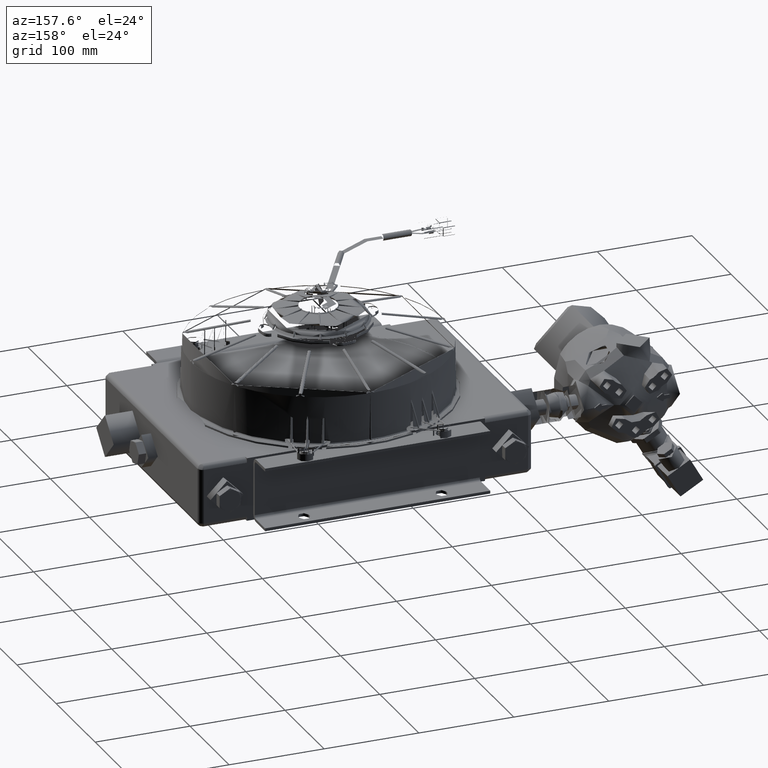
[diagram: clean part render]
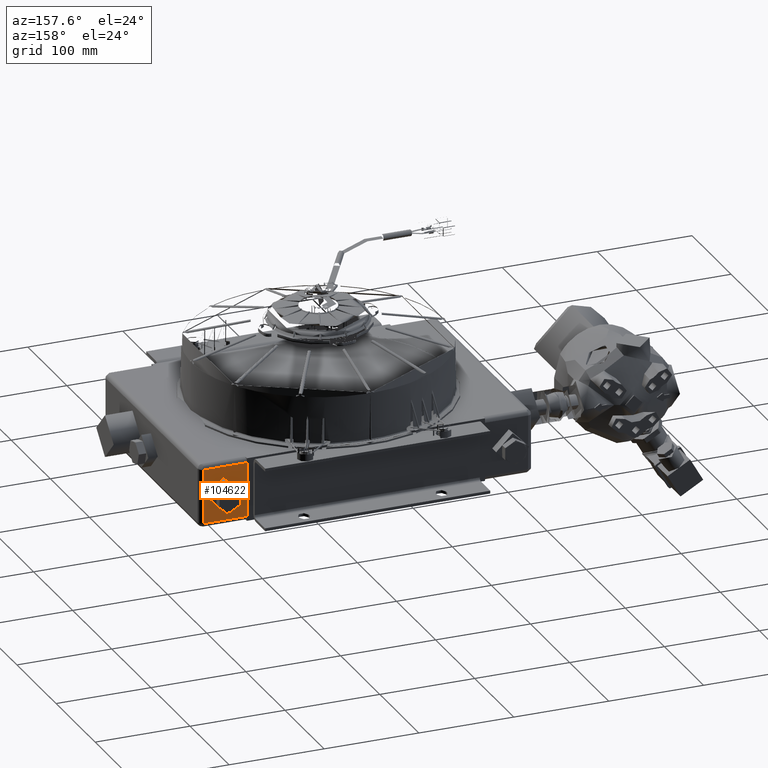
[diagram: same view with one face highlighted and labeled with its STEP entity id]
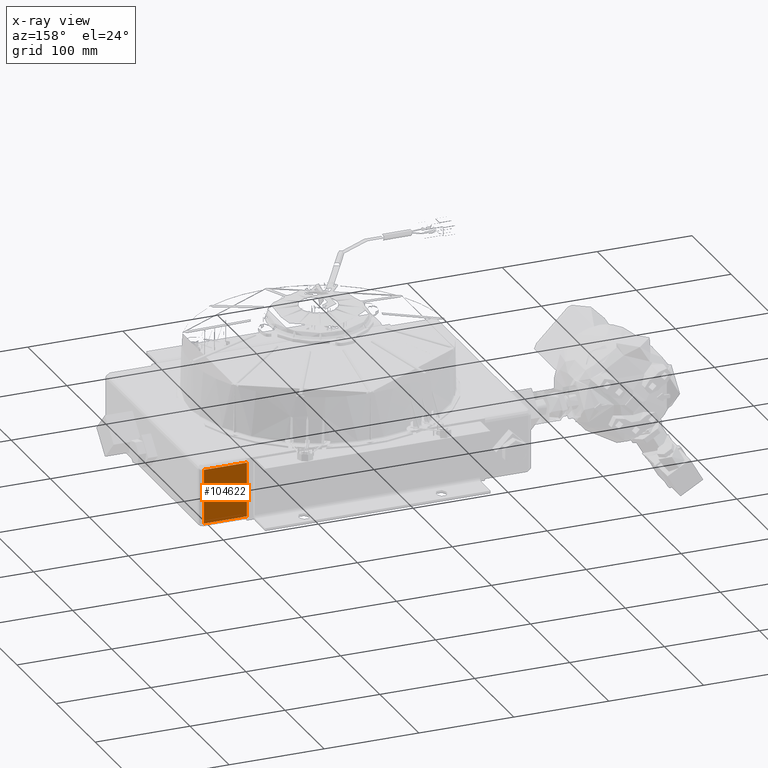
[diagram: x-ray of the same camera — body ghosted, the highlighted face saturated]
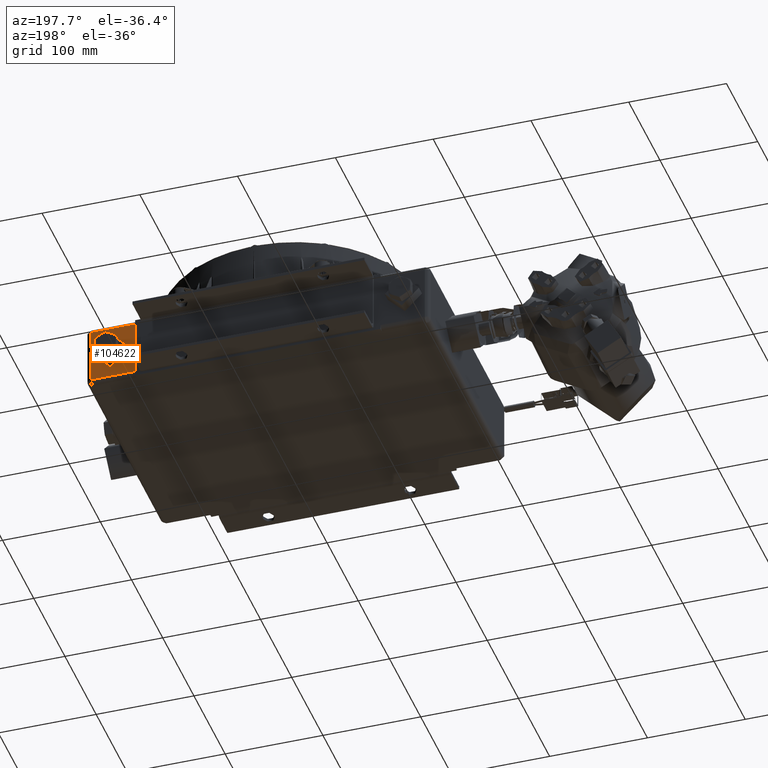
[diagram: same view with one face highlighted and labeled with its STEP entity id]
A machine part, auxiliary view. The second image highlights one B-rep face of the part: STEP entity #104622.
The next image is the same camera in x-ray: the body ghosted, the highlighted face saturated — about 0% of this face is hidden behind the body in this view.
A second angle (auxiliary view) of the same face is appended — the face is thin or edge-on in the first view.
In plain terms, the highlighted planar face has unit normal (0, -1, 0).
Its self-contained STEP definition (entity closure, byte-faithful):
#4170 = EDGE_CURVE ( 'NONE', #159332, #161706, #108091, .T. ) ;
#5945 = ORIENTED_EDGE ( 'NONE', *, *, #113760, .F. ) ;
#6451 = LINE ( 'NONE', #32291, #39368 ) ;
#13974 = CARTESIAN_POINT ( 'NONE',  ( 4.940944881889763884, 4.803149606299212948, -1.125492125984252301 ) ) ;
#26716 = VERTEX_POINT ( 'NONE', #124164 ) ;
#32291 = CARTESIAN_POINT ( 'NONE',  ( 4.940944881889763884, 4.803149606299212948, 1.312992125984251857 ) ) ;
#36467 = CARTESIAN_POINT ( 'NONE',  ( 4.940944881889763884, 4.803149606299212948, 1.125492125984251857 ) ) ;
#39368 = VECTOR ( 'NONE', #134002, 39.37007874015748143 ) ;
#41320 = VECTOR ( 'NONE', #147935, 39.37007874015748143 ) ;
#53710 = ORIENTED_EDGE ( 'NONE', *, *, #127357, .F. ) ;
#61762 = CARTESIAN_POINT ( 'NONE',  ( 4.940944881889763884, 4.803149606299212948, 1.312992125984251857 ) ) ;
#62123 = ORIENTED_EDGE ( 'NONE', *, *, #4170, .F. ) ;
#62187 = VECTOR ( 'NONE', #133094, 39.37007874015748143 ) ;
#62414 = VECTOR ( 'NONE', #156578, 39.37007874015748143 ) ;
#76933 = EDGE_LOOP ( 'NONE', ( #53710, #137084, #62123, #5945 ) ) ;
#79908 = CARTESIAN_POINT ( 'NONE',  ( 6.723444881889763636, 4.803149606299213836, 1.312992125984251857 ) ) ;
#81561 = LINE ( 'NONE', #79908, #62414 ) ;
#98413 = FACE_OUTER_BOUND ( 'NONE', #76933, .T. ) ;
#100880 = DIRECTION ( 'NONE',  ( 0.0000000000000000000, -1.000000000000000000, 0.0000000000000000000 ) ) ;
#104622 = ADVANCED_FACE ( 'NONE', ( #98413 ), #135142, .F. ) ;
#107955 = CARTESIAN_POINT ( 'NONE',  ( 4.940944881889763884, 4.803149606299212948, 1.125492125984251857 ) ) ;
#108091 = LINE ( 'NONE', #162184, #62187 ) ;
#113760 = EDGE_CURVE ( 'NONE', #128851, #159332, #6451, .T. ) ;
#115048 = DIRECTION ( 'NONE',  ( 0.0000000000000000000, -0.0000000000000000000, -1.000000000000000000 ) ) ;
#124164 = CARTESIAN_POINT ( 'NONE',  ( 6.723444881889763636, 4.803149606299212948, 1.125492125984251857 ) ) ;
#126016 = EDGE_CURVE ( 'NONE', #161706, #26716, #81561, .T. ) ;
#127357 = EDGE_CURVE ( 'NONE', #26716, #128851, #131289, .T. ) ;
#128851 = VERTEX_POINT ( 'NONE', #36467 ) ;
#131289 = LINE ( 'NONE', #107955, #41320 ) ;
#133094 = DIRECTION ( 'NONE',  ( 1.000000000000000000, 0.0000000000000000000, 0.0000000000000000000 ) ) ;
#134002 = DIRECTION ( 'NONE',  ( 0.0000000000000000000, -0.0000000000000000000, -1.000000000000000000 ) ) ;
#135142 = PLANE ( 'NONE',  #136576 ) ;
#136576 = AXIS2_PLACEMENT_3D ( 'NONE', #61762, #100880, #115048 ) ;
#137084 = ORIENTED_EDGE ( 'NONE', *, *, #126016, .F. ) ;
#147935 = DIRECTION ( 'NONE',  ( -1.000000000000000000, -0.0000000000000000000, -0.0000000000000000000 ) ) ;
#153483 = CARTESIAN_POINT ( 'NONE',  ( 6.723444881889763636, 4.803149606299212948, -1.125492125984252301 ) ) ;
#156578 = DIRECTION ( 'NONE',  ( -0.0000000000000000000, -0.0000000000000000000, 1.000000000000000000 ) ) ;
#159332 = VERTEX_POINT ( 'NONE', #13974 ) ;
#161706 = VERTEX_POINT ( 'NONE', #153483 ) ;
#162184 = CARTESIAN_POINT ( 'NONE',  ( 4.940944881889763884, 4.803149606299212948, -1.125492125984252301 ) ) ;